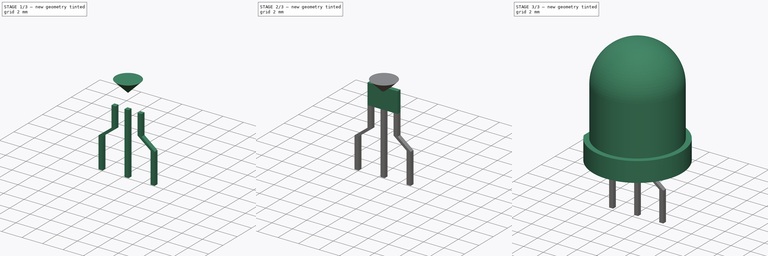
[diagram: build sequence overview — one tinted view per stage of 3, left to right]
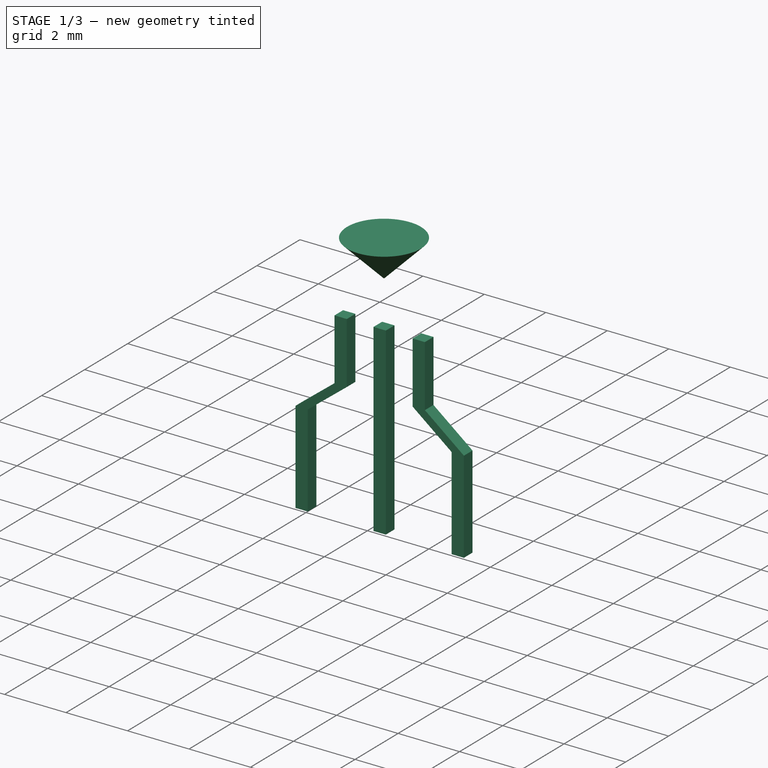
[diagram: stage 1 of 3 — iso view after this stage's code; geometry added in this stage tinted green]
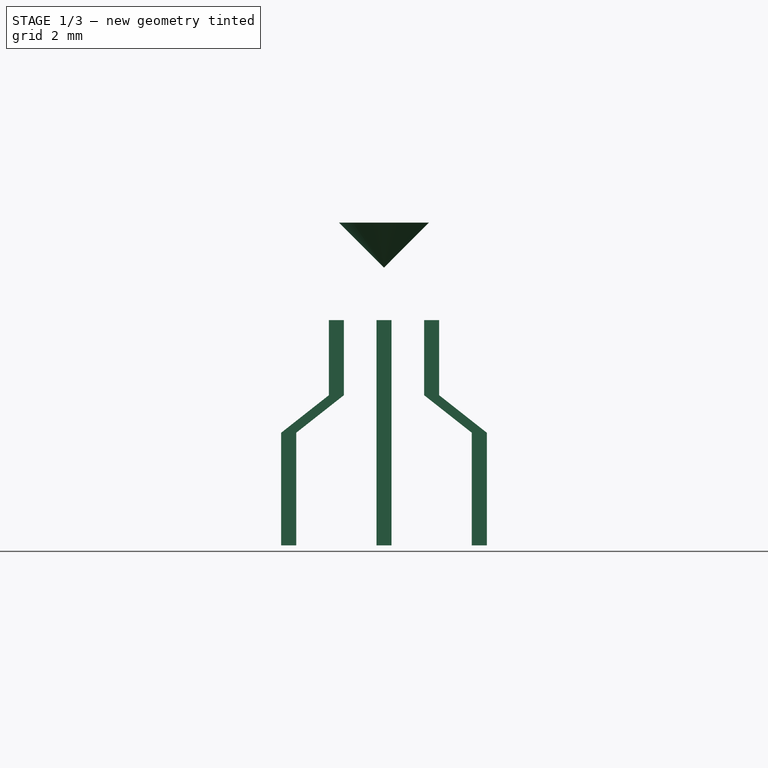
[diagram: stage 1 of 3 — front view after this stage's code; geometry added in this stage tinted green]
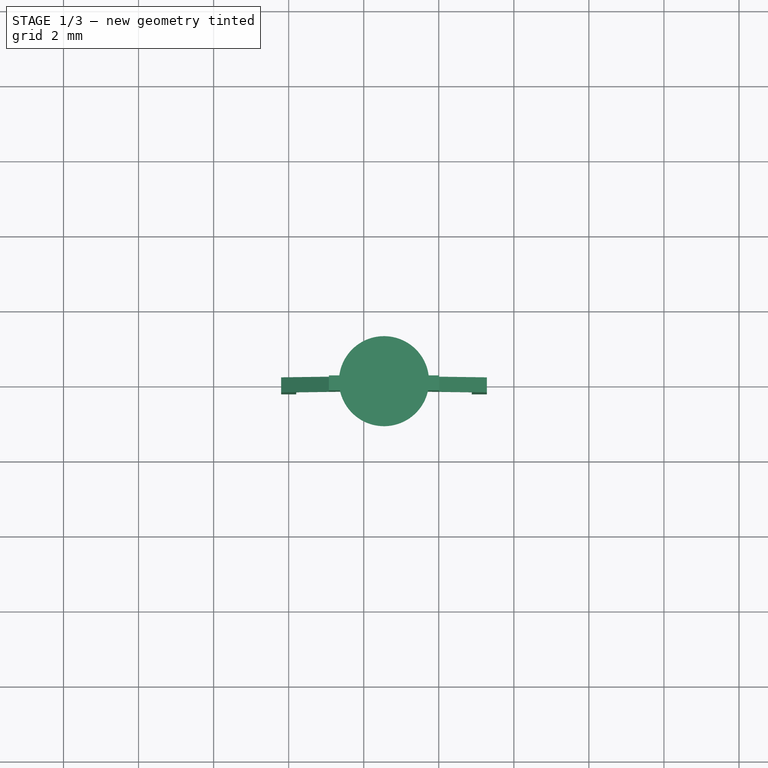
[diagram: stage 1 of 3 — top view after this stage's code; geometry added in this stage tinted green]
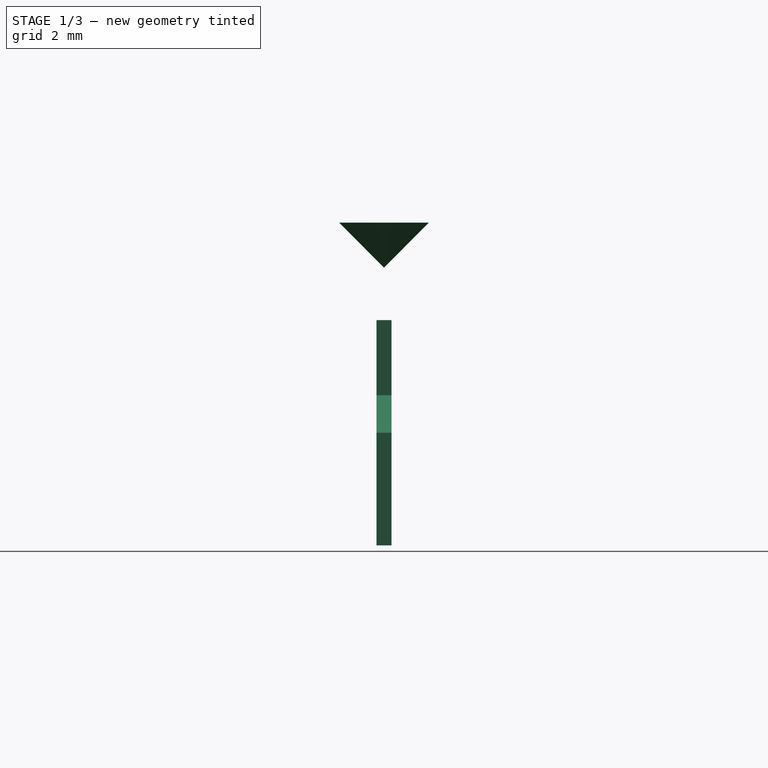
[diagram: stage 1 of 3 — right view after this stage's code; geometry added in this stage tinted green]
FCSTD DOCUMENT  (FreeCAD 0.16R6703 (Git))
Label: LED_D8.0mm-3
License: All rights reserved
LicenseURL: http://en.wikipedia.org/wiki/All_rights_reserved
objects: Sketcher::SketchObject×5, PartDesign::Pad×3, PartDesign::Revolution×2, Spreadsheet::Sheet×1
note: 15 computed .brp shape members not serialized (recipe doc carries the construction recipe); baked Part::Feature solids carry a one-line shape summary decoded from their .brp

FEATURE [Sketcher::SketchObject] Sketch004
  Placement = pos=(1.27,0,0) rot=(1,0,0;1.5708rad)
  expr: Placement.Base.x = Spreadsheet.RM / 2
  expr: Constraints[11] = 3 + Spreadsheet.height_bottom * 1.5 - Spreadsheet.din * 0.3 / 4
  expr: Constraints[7] = Spreadsheet.din * 0.3 / 2
  sketch-geometry (4):
    g0: LineSegment StartX=1.27 StartY=5.4 StartZ=0 EndX=0.07 EndY=6.6 EndZ=0
    g1: LineSegment StartX=0.07 StartY=6.6 StartZ=0 EndX=1.27 EndY=6.6 EndZ=0
    g2: LineSegment StartX=1.27 StartY=6.6 StartZ=0 EndX=1.27 EndY=5.4 EndZ=0
    g3: LineSegment [constr] StartX=1.27 StartY=5.37499 StartZ=0 EndX=1.27 EndY=4.85847 EndZ=0
  constraints (12):
    c: PointOnObject(g1,g0)
    c: Horizontal(g1)
    c: Vertical(g2)
    c: Coincident(g0,g2)
    c: Coincident(g0,g1)
    c: Coincident(g1,g2)
    c: Angle(g0,g1) = 0.785398
    c: DistanceX(g1,g1) = 1.2
    c: PointOnObject(g3,g2)
    c: Vertical(g3)
    c: DistanceX(g-1,g3) = 1.27
    c: DistanceY(g-1,g0) = 5.4
FEATURE [PartDesign::Revolution] Revolution001
  Angle = 360
  Axis = (0,0,-0.51652)
  Base = (2.54,0,5.37499)
  Placement = pos=(1.27,0,0) rot=(1,0,0;1.5708rad)
  ReferenceAxis = -> Sketch004 [Axis0]
  Reversed = true
  Sketch = -> Sketch004
FEATURE [Sketcher::SketchObject] Sketch005
  Placement = pos=(0,0,0) rot=(1,0,0;1.5708rad)
  expr: Constraints[55] = Spreadsheet.RM / 2
  expr: Constraints[53] = Spreadsheet.RM
  expr: Constraints[52] = Spreadsheet.d_wire
  expr: Constraints[37] = Spreadsheet.RM / 2
  expr: Constraints[56] = Spreadsheet.d_wire
  expr: Constraints[36] = Spreadsheet.d_wire / 2
  expr: Constraints[35] = Spreadsheet.RM
  expr: Constraints[33] = Spreadsheet.d_wire
  expr: Constraints[21] = Spreadsheet.height_bottom
  expr: Constraints[17] = Spreadsheet.d_wire
  expr: Constraints[18] = Spreadsheet.d_wire
  expr: Constraints[1] = Spreadsheet.height_bottom / 2 + 3
  sketch-geometry (21):
    g0: LineSegment [constr] StartX=-0.388102 StartY=4 StartZ=0 EndX=8.93617 EndY=4 EndZ=0
    g1: LineSegment StartX=1.07 StartY=4 StartZ=0 EndX=1.47 EndY=4 EndZ=0
    g2: LineSegment StartX=1.47 StartY=4 StartZ=0 EndX=1.47 EndY=2 EndZ=0
    g3: LineSegment StartX=1.07 StartY=2 StartZ=0 EndX=1.07 EndY=4 EndZ=0
    g4: LineSegment StartX=-0.2 StartY=-2 StartZ=0 EndX=0.2 EndY=-2 EndZ=0
    g5: LineSegment StartX=0.2 StartY=-2 StartZ=0 EndX=0.2 EndY=1 EndZ=0
    g6: LineSegment StartX=-0.2 StartY=1 StartZ=0 EndX=-0.2 EndY=-2 EndZ=0
    g7: LineSegment StartX=1.07 StartY=2 StartZ=0 EndX=-0.2 EndY=1 EndZ=0
    g8: LineSegment StartX=1.47 StartY=2 StartZ=0 EndX=0.2 EndY=1 EndZ=0
    g9: LineSegment StartX=2.34 StartY=4 StartZ=0 EndX=2.74 EndY=4 EndZ=0
    g10: LineSegment StartX=2.74 StartY=4 StartZ=0 EndX=2.74 EndY=-2 EndZ=0
    g11: LineSegment StartX=2.74 StartY=-2 StartZ=0 EndX=2.34 EndY=-2 EndZ=0
    g12: LineSegment StartX=2.34 StartY=-2 StartZ=0 EndX=2.34 EndY=4 EndZ=0
    g13: LineSegment StartX=3.61 StartY=4 StartZ=0 EndX=4.01 EndY=4 EndZ=0
    g14: LineSegment StartX=4.01 StartY=4 StartZ=0 EndX=4.01 EndY=2 EndZ=0
    g15: LineSegment StartX=3.61 StartY=2 StartZ=0 EndX=3.61 EndY=4 EndZ=0
    g16: LineSegment StartX=5.28 StartY=1 StartZ=0 EndX=5.28 EndY=-2.00201 EndZ=0
    g17: LineSegment StartX=5.28 StartY=-2.00201 StartZ=0 EndX=4.88 EndY=-2.00201 EndZ=0
    g18: LineSegment StartX=4.88 StartY=-2.00201 StartZ=0 EndX=4.88 EndY=1 EndZ=0
    g19: LineSegment StartX=3.61 StartY=2 StartZ=0 EndX=4.88 EndY=1 EndZ=0
    g20: LineSegment StartX=4.01 StartY=2 StartZ=0 EndX=5.28 EndY=1 EndZ=0
  constraints (61):
    c: Horizontal(g0)
    c: DistanceY(g-1,g0) = 4
    c: Coincident(g1,g2)
    c: Coincident(g3,g1)
    c: Horizontal(g1)
    c: Vertical(g2)
    c: Vertical(g3)
    c: PointOnObject(g1,g0)
    c: Coincident(g4,g5)
    c: Coincident(g6,g4)
    c: Horizontal(g4)
    c: Vertical(g5)
    c: Vertical(g6)
    c: Coincident(g7,g6)
    c: Coincident(g8,g2)
    c: Coincident(g8,g5)
    c: Coincident(g3,g7)
    c: DistanceX(g3,g2) = 0.4
    c: DistanceX(g6,g5) = 0.4
    c: DistanceY(g2,g3) = 0
    c: DistanceY(g6,g5) = 0
    c: DistanceY(g3,g0) = 2
    c: DistanceY(g4,g-1) = 2
    c: DistanceY(g5,g2) = 1
    c: Coincident(g9,g10)
    c: Coincident(g10,g11)
    c: Coincident(g11,g12)
    c: Coincident(g12,g9)
    c: Horizontal(g9)
    c: Horizontal(g11)
    c: Vertical(g10)
    c: Vertical(g12)
    c: PointOnObject(g9,g0)
    c: DistanceX(g11,g11) = 0.4
    c: DistanceY(g4,g11) = 0
    c: DistanceX(g4,g11) = 2.54
    c: DistanceX(g4,g-1) = 0.2
    c: DistanceX(g1,g9) = 1.27
    c: Coincident(g13,g14)
    c: Coincident(g15,g13)
    c: Horizontal(g13)
    c: Vertical(g14)
    c: Vertical(g15)
    c: PointOnObject(g13,g0)
    c: Coincident(g16,g17)
    c: Coincident(g17,g18)
    c: Horizontal(g17)
    c: Vertical(g16)
    c: Vertical(g18)
    c: Coincident(g19,g15)
    c: Coincident(g19,g18)
    c: Coincident(g20,g14)
    c: DistanceX(g17,g17) = 0.4
    c: DistanceX(g11,g17) = 2.54
    c: Coincident(g20,g16)
    c: DistanceX(g9,g13) = 1.27
    c: DistanceX(g15,g14) = 0.4
    c: DistanceY(g15,g2) = 0
    c: DistanceY(g14,g15) = 0
    c: DistanceY(g16,g18) = 0
    c: DistanceY(g5,g18) = 0
FEATURE [PartDesign::Pad] Pad003
  Length = 0.4
  Length2 = 100
  Midplane = true
  Placement = pos=(0,0,0) rot=(1,0,0;1.5708rad)
  Sketch = -> Sketch005
  Type = 0
  expr: Length = Spreadsheet.d_wire
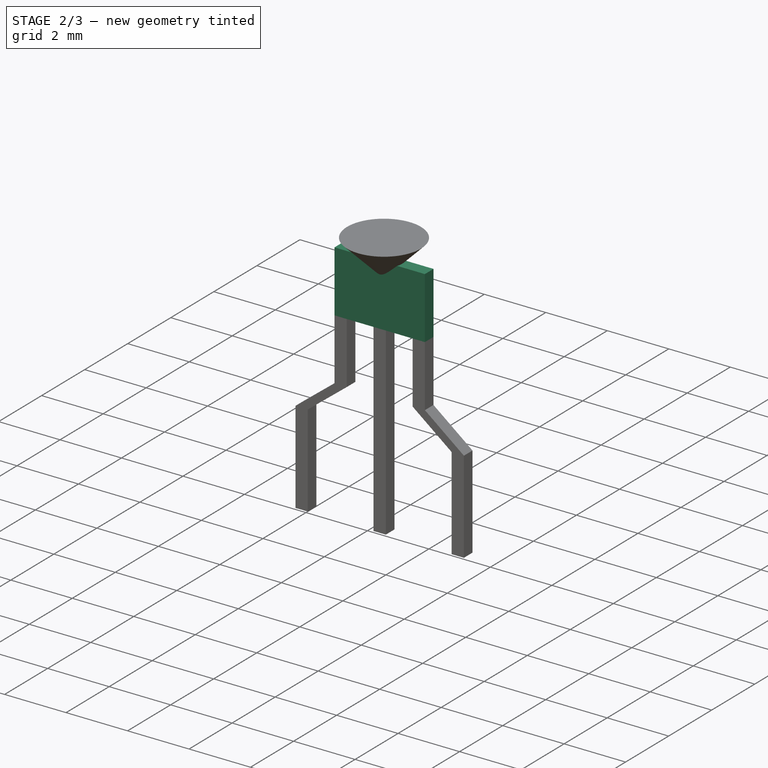
[diagram: stage 2 of 3 — iso view after this stage's code; geometry added in this stage tinted green]
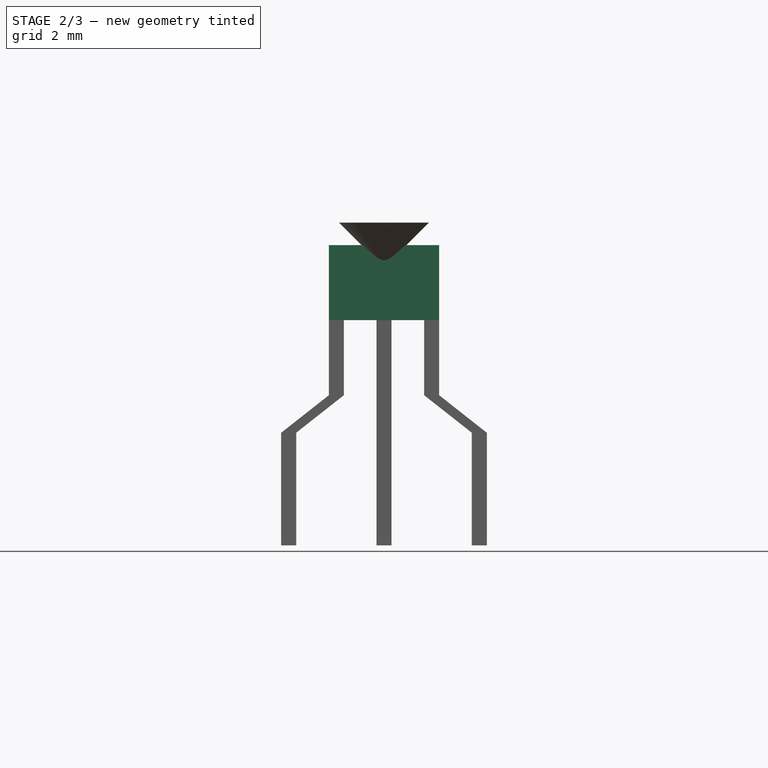
[diagram: stage 2 of 3 — front view after this stage's code; geometry added in this stage tinted green]
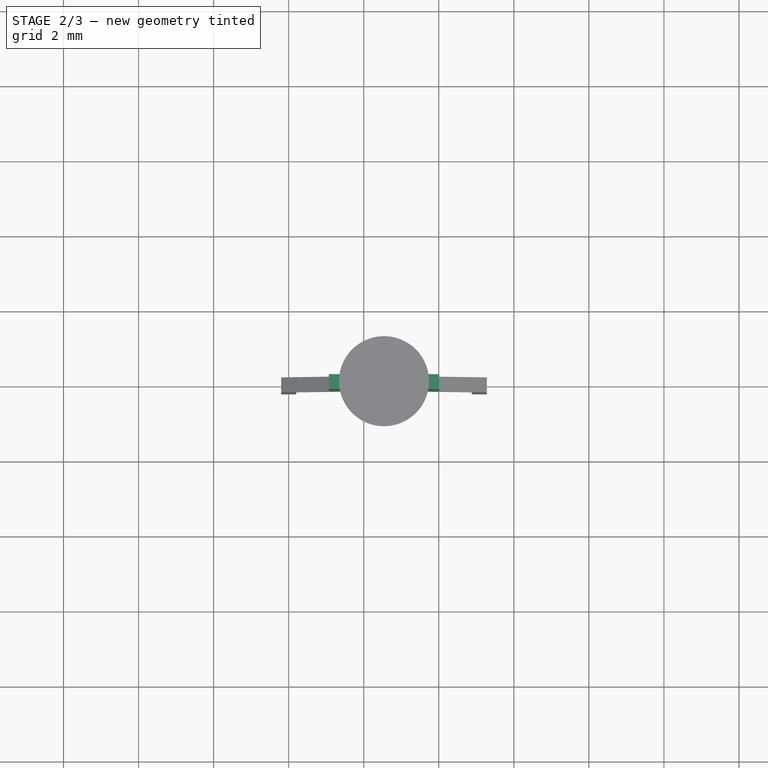
[diagram: stage 2 of 3 — top view after this stage's code; geometry added in this stage tinted green]
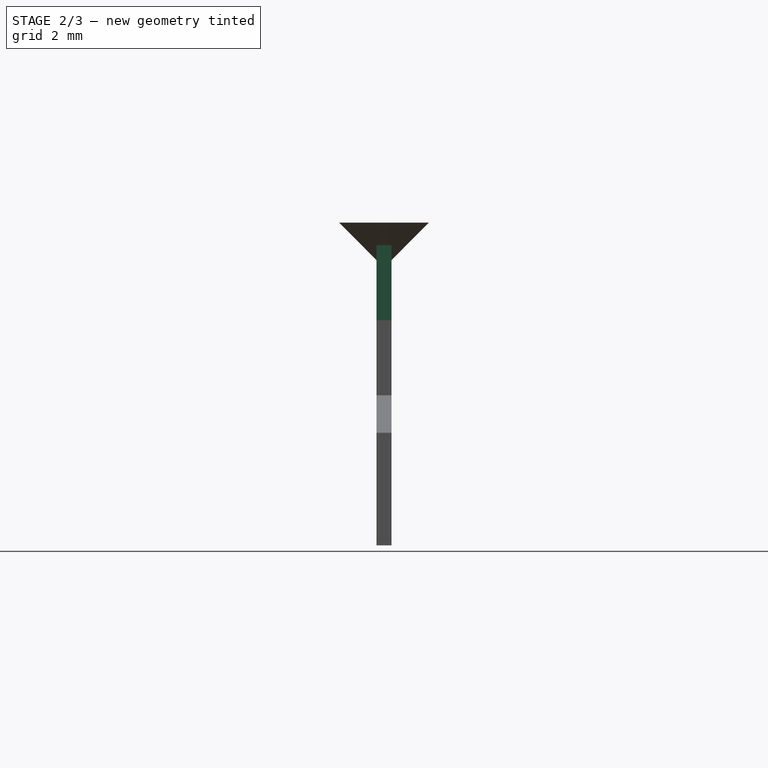
[diagram: stage 2 of 3 — right view after this stage's code; geometry added in this stage tinted green]
FEATURE [Sketcher::SketchObject] Sketch003
  Placement = pos=(1.27,0,4) rot=(0,0,1;0rad)
  expr: Placement.Base.x = Spreadsheet.RM / 2
  expr: Constraints[6] = Spreadsheet.d_wire / 2
  expr: Constraints[8] = Spreadsheet.d_wire + Spreadsheet.RM
  expr: Constraints[7] = Spreadsheet.d_wire
  expr: Constraints[5] = Spreadsheet.d_wire / 2
  expr: Placement.Base.z = 3 + Spreadsheet.height_bottom / 2
  sketch-geometry (4):
    g0: LineSegment StartX=-0.2 StartY=0.2 StartZ=0 EndX=2.74 EndY=0.2 EndZ=0
    g1: LineSegment StartX=2.74 StartY=-0.2 StartZ=0 EndX=-0.2 EndY=-0.2 EndZ=0
    g2: LineSegment StartX=-0.2 StartY=-0.2 StartZ=0 EndX=-0.2 EndY=0.2 EndZ=0
    g3: LineSegment StartX=2.74 StartY=0.2 StartZ=0 EndX=2.74 EndY=-0.2 EndZ=0
  constraints (12):
    c: Coincident(g1,g2)
    c: Coincident(g2,g0)
    c: Horizontal(g0)
    c: Horizontal(g1)
    c: Vertical(g2)
    c: DistanceX(g1,g-1) = 0.2
    c: DistanceY(g-1,g0) = 0.2
    c: DistanceY(g1,g0) = 0.4
    c: DistanceX(g1,g1) = 2.94
    c: Coincident(g3,g0)
    c: Coincident(g3,g1)
    c: Vertical(g3)
FEATURE [PartDesign::Pad] Pad002
  Length = 2
  Length2 = 100
  Placement = pos=(1.27,0,4) rot=(0,0,1;0rad)
  Sketch = -> Sketch003
  Type = 0
  expr: Length = Spreadsheet.height_bottom
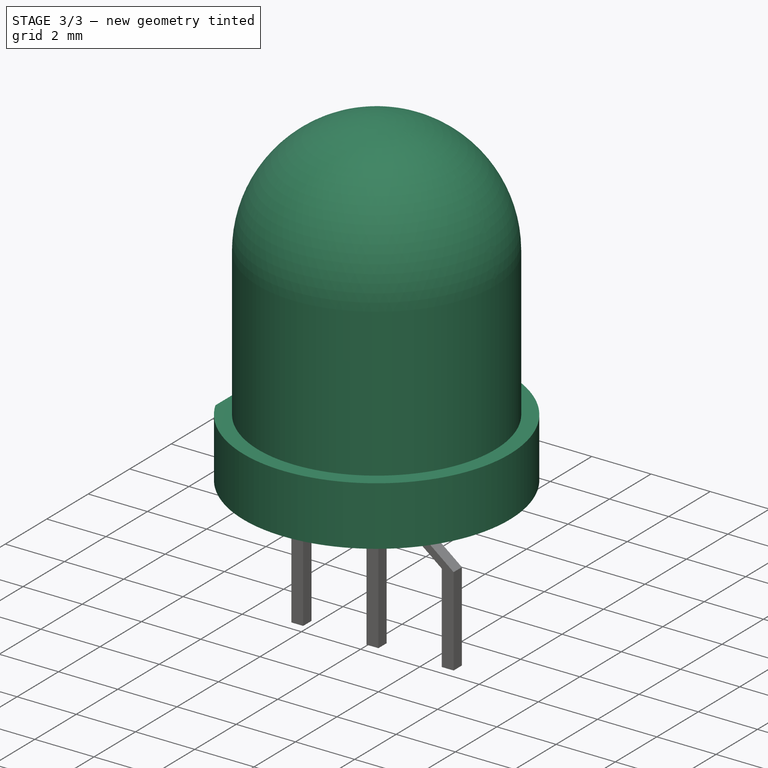
[diagram: stage 3 of 3 — iso view after this stage's code; geometry added in this stage tinted green]
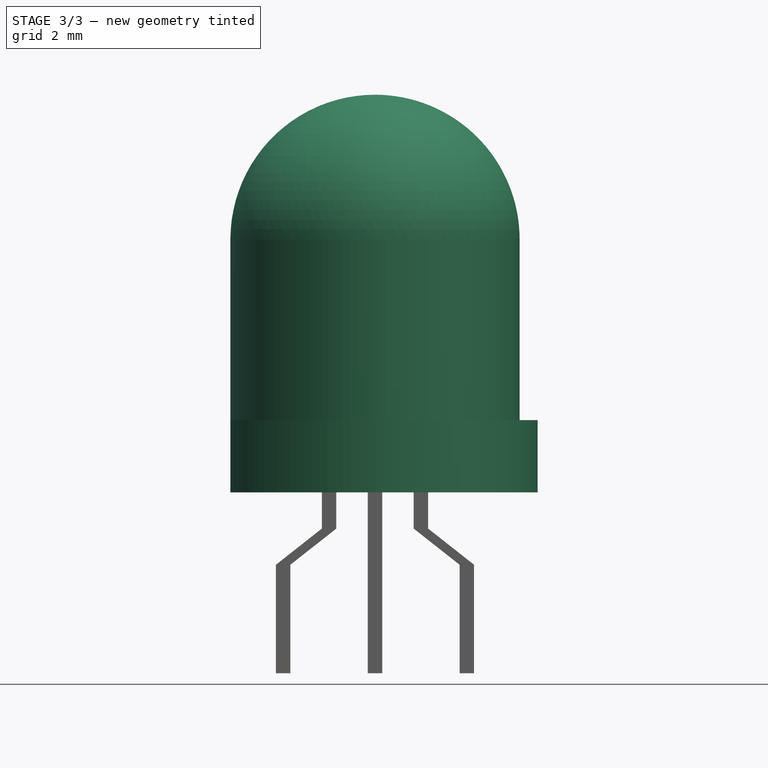
[diagram: stage 3 of 3 — front view after this stage's code; geometry added in this stage tinted green]
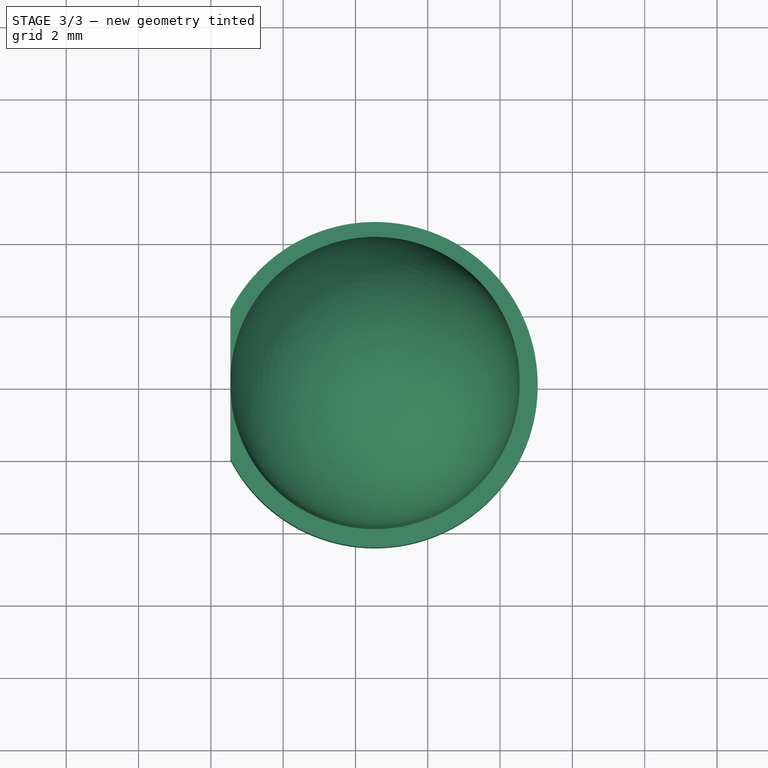
[diagram: stage 3 of 3 — top view after this stage's code; geometry added in this stage tinted green]
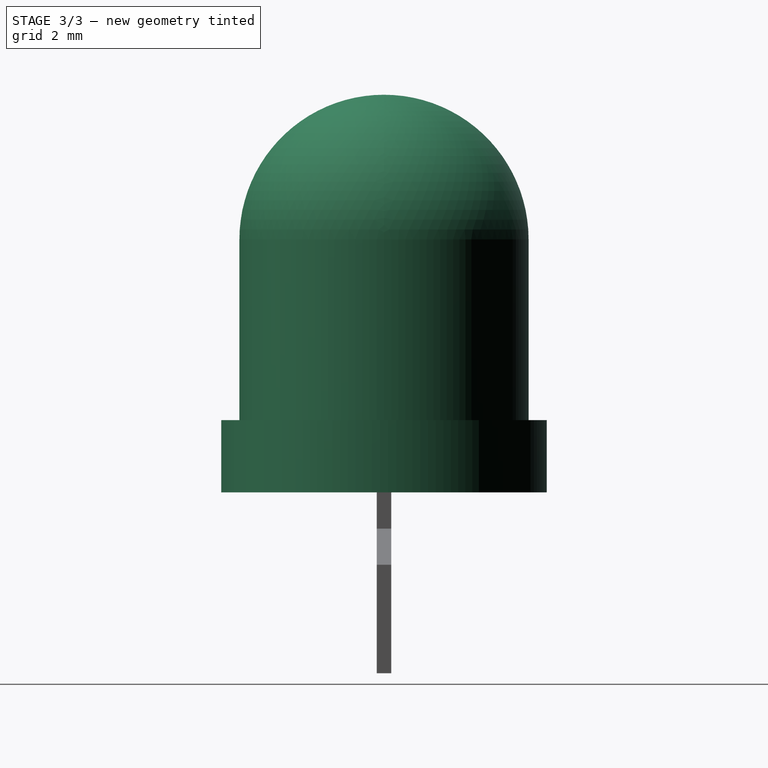
[diagram: stage 3 of 3 — right view after this stage's code; geometry added in this stage tinted green]
FEATURE [Spreadsheet::Sheet] Spreadsheet
  cells = A1=din; B1(din)=8; A2=dout; B2(dout)=9; A3=RM; B3(RM)=2.54; A4=d_wire; B4(d_wire)=0.4; A5=height; B5(height)=9; A6=height_bottom; B6(height_bottom)=2
FEATURE [Sketcher::SketchObject] Sketch
  Placement = pos=(2.54,0,0) rot=(1,0,0;1.5708rad)
  expr: Constraints[10] = 3 + Spreadsheet.height_bottom
  expr: Constraints[11] = Spreadsheet.height - Spreadsheet.din / 2
  expr: Constraints[9] = Spreadsheet.height
  expr: Placement.Base.x = Spreadsheet.RM
  sketch-geometry (4):
    g0: ArcOfCircle CenterX=0 CenterY=10 CenterZ=0 NormalX=0 NormalY=0 NormalZ=1 Radius=4 StartAngle=0 EndAngle=1.5708
    g1: LineSegment StartX=4 StartY=10 StartZ=0 EndX=4 EndY=5 EndZ=0
    g2: LineSegment StartX=4 StartY=5 StartZ=0 EndX=0 EndY=5 EndZ=0
    g3: LineSegment StartX=0 StartY=5 StartZ=0 EndX=0 EndY=14 EndZ=0
  constraints (13):
    c: PointOnObject(g0,g-2)
    c: PointOnObject(g0,g-2)
    c: DistanceY(g0,g0) = 0
    c: Vertical(g1)
    c: Coincident(g2,g1)
    c: PointOnObject(g2,g-2)
    c: Horizontal(g2)
    c: Coincident(g3,g2)
    c: Coincident(g3,g0)
    c: DistanceY(g3,g3) = 9
    c: DistanceY(g-1,g1) = 5
    c: DistanceY(g1,g0) = 5
    c: Coincident(g0,g1)
FEATURE [PartDesign::Revolution] Revolution
  Angle = 360
  Axis = (0,0,1)
  Base = (2.54,0,0)
  Placement = pos=(2.54,0,0) rot=(1,0,0;1.5708rad)
  ReferenceAxis = -> Sketch [V_Axis]
  Reversed = true
  Sketch = -> Sketch
FEATURE [Sketcher::SketchObject] Sketch001
  Placement = pos=(2.54,0,3) rot=(0,0,1;0rad)
  expr: Placement.Base.x = Spreadsheet.RM
  expr: Constraints[4] = Spreadsheet.dout / 2
  expr: Constraints[5] = Spreadsheet.din / 2
  sketch-geometry (2):
    g0: ArcOfCircle CenterX=0 CenterY=0 CenterZ=0 NormalX=0 NormalY=0 NormalZ=1 Radius=4.5 StartAngle=3.61747 EndAngle=8.9489
    g1: LineSegment StartX=-4 StartY=-2.06155 StartZ=0 EndX=-4 EndY=2.06155 EndZ=0
  constraints (6):
    c: Coincident(g0,g-1)
    c: Coincident(g1,g0)
    c: Coincident(g1,g0)
    c: Vertical(g1)
    c: Radius(g0) = 4.5
    c: DistanceX(g0,g-1) = 4
FEATURE [PartDesign::Pad] Pad
  Length = 2
  Length2 = 100
  Placement = pos=(2.54,0,3) rot=(0,0,1;0rad)
  Sketch = -> Sketch001
  Type = 0
  expr: Length = Spreadsheet.height_bottom
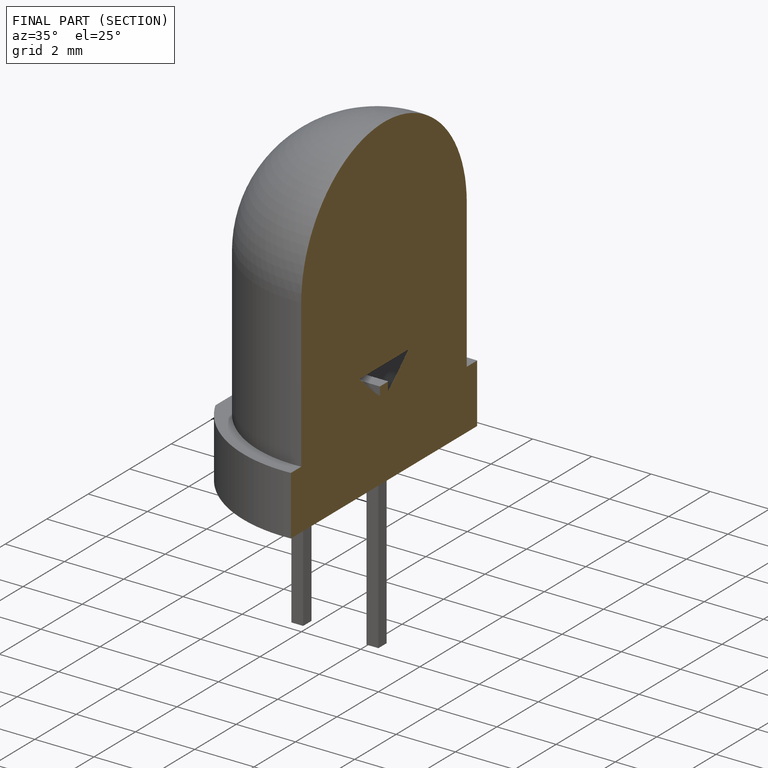
[diagram: finished part — half-section view (interior)]
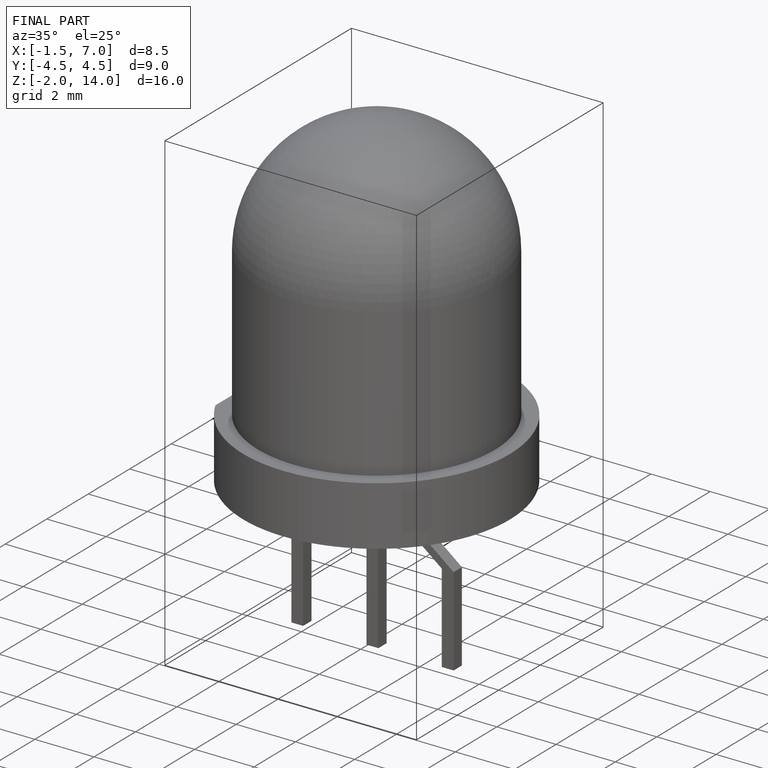
[diagram: finished part — iso view with bounding-box wireframe]
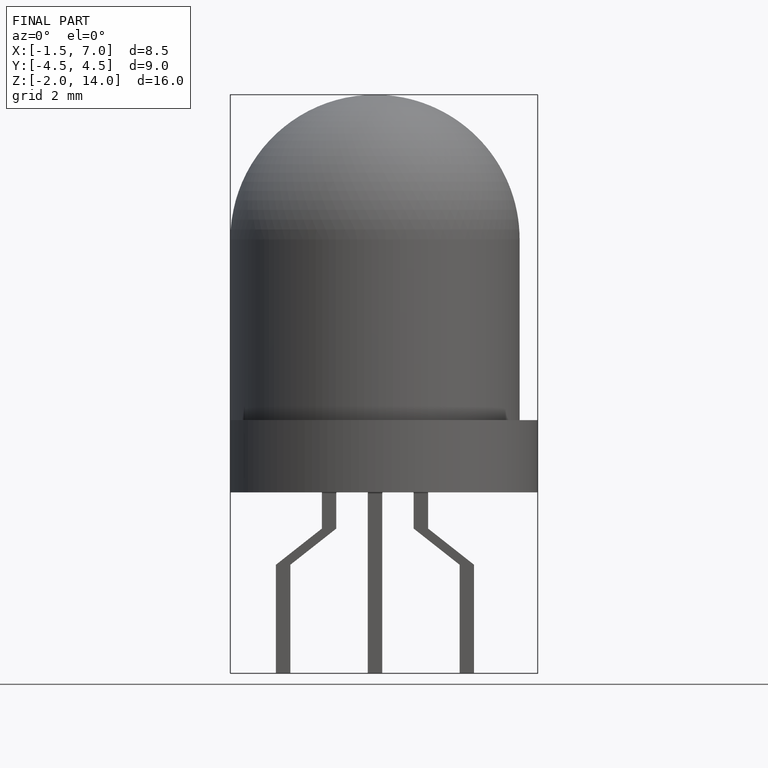
[diagram: finished part — front view with bounding-box wireframe]
